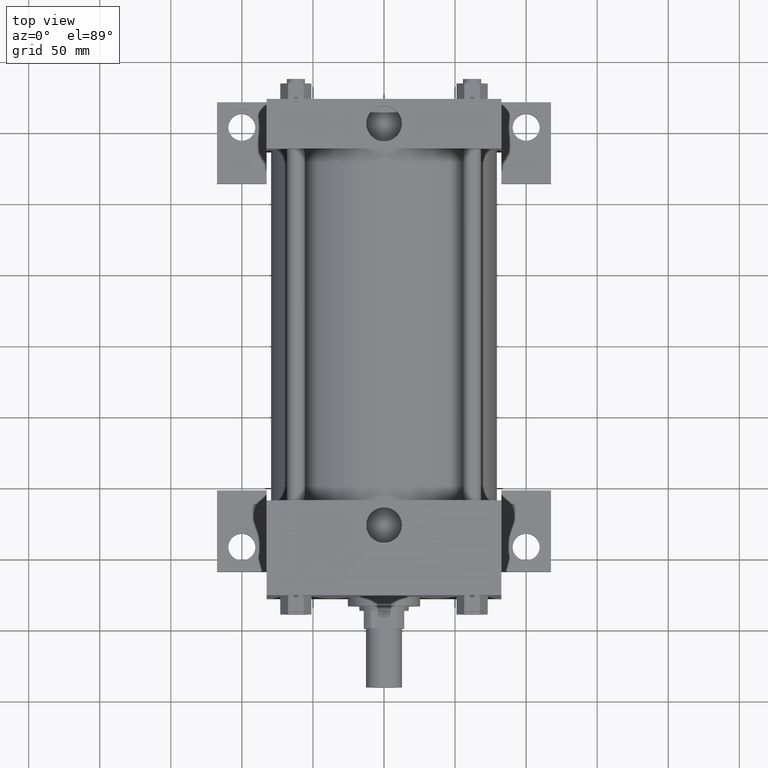
[diagram: clean part render]
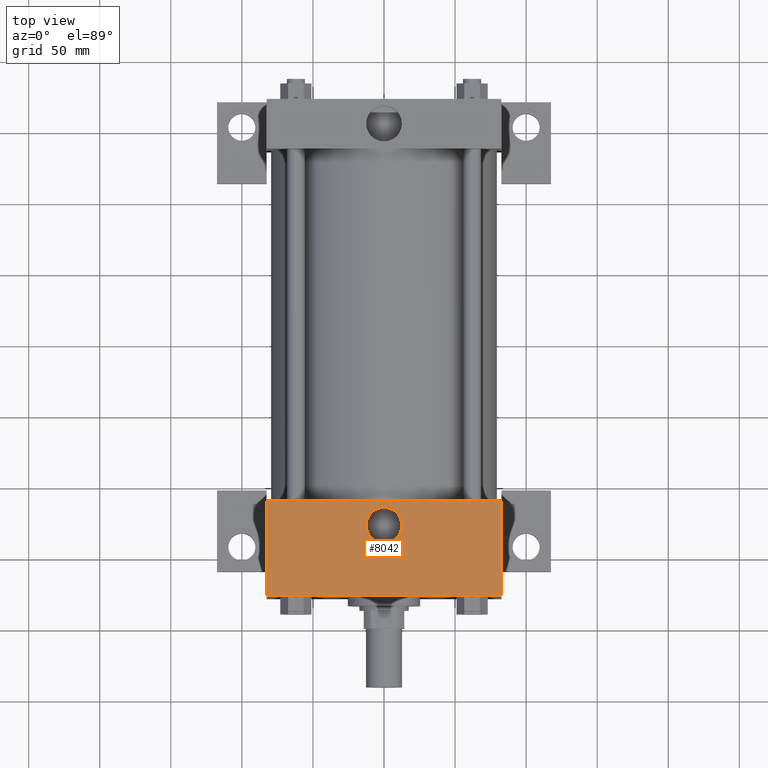
[diagram: same view with one face highlighted and labeled with its STEP entity id]
A machine part, top view. The second image highlights one B-rep face of the part: STEP entity #8042.
In plain terms, the highlighted planar face has unit normal (0, 0, 1).
Its self-contained STEP definition (entity closure, byte-faithful):
#1382=EDGE_CURVE('',#1388,#1388,#1383,.T.);
#1383=CIRCLE('',#1384,1.255903000E+001);
#1384=AXIS2_PLACEMENT_3D('',#1385,#1386,#1387);
#1385=CARTESIAN_POINT('',(0.000000000E+000,7.143750000E+001,8.255000000E+001));
#1386=DIRECTION('',(0.0E+000,0.0E+000,-1.0E+000));
#1387=DIRECTION('',(-1.0E+000,0.0E+000,0.0E+000));
#1388=VERTEX_POINT('',#1389);
#1389=CARTESIAN_POINT('',(-1.255903000E+001,7.143750000E+001,8.255000000E+001));
#1846=VERTEX_POINT('',#1847);
#1847=CARTESIAN_POINT('',(-8.255000000E+001,2.222500000E+001,8.255000000E+001));
#1848=EDGE_CURVE('',#1853,#1846,#1849,.T.);
#1849=LINE('',#1850,#1851);
#1850=CARTESIAN_POINT('',(-8.255000000E+001,8.890000000E+001,8.255000000E+001));
#1851=VECTOR('',#1852,1.0E+000);
#1852=DIRECTION('',(0.0E+000,-1.0E+000,0.0E+000));
#1853=VERTEX_POINT('',#1854);
#1854=CARTESIAN_POINT('',(-8.255000000E+001,8.890000000E+001,8.255000000E+001));
#1861=FACE_OUTER_BOUND('',#1863,.T.);
#1862=FACE_BOUND('',#1864,.T.);
#1863=EDGE_LOOP('',(#1865));
#1864=EDGE_LOOP('',(#1866,#1867,#1868,#1869));
#1865=ORIENTED_EDGE('',*,*,#1382,.T.);
#1866=ORIENTED_EDGE('',*,*,#1870,.F.);
#1867=ORIENTED_EDGE('',*,*,#1877,.F.);
#1868=ORIENTED_EDGE('',*,*,#1884,.T.);
#1869=ORIENTED_EDGE('',*,*,#1848,.T.);
#1870=EDGE_CURVE('',#1875,#1846,#1871,.T.);
#1871=LINE('',#1872,#1873);
#1872=CARTESIAN_POINT('',(8.255000000E+001,2.222500000E+001,8.255000000E+001));
#1873=VECTOR('',#1874,1.0E+000);
#1874=DIRECTION('',(-1.0E+000,0.0E+000,0.0E+000));
#1875=VERTEX_POINT('',#1876);
#1876=CARTESIAN_POINT('',(8.255000000E+001,2.222500000E+001,8.255000000E+001));
#1877=EDGE_CURVE('',#1882,#1875,#1878,.T.);
#1878=LINE('',#1879,#1880);
#1879=CARTESIAN_POINT('',(8.255000000E+001,8.890000000E+001,8.255000000E+001));
#1880=VECTOR('',#1881,1.0E+000);
#1881=DIRECTION('',(0.0E+000,-1.0E+000,0.0E+000));
#1882=VERTEX_POINT('',#1883);
#1883=CARTESIAN_POINT('',(8.255000000E+001,8.890000000E+001,8.255000000E+001));
#1884=EDGE_CURVE('',#1882,#1853,#1885,.T.);
#1885=LINE('',#1886,#1887);
#1886=CARTESIAN_POINT('',(8.255000000E+001,8.890000000E+001,8.255000000E+001));
#1887=VECTOR('',#1888,1.0E+000);
#1888=DIRECTION('',(-1.0E+000,0.0E+000,0.0E+000));
#1889=PLANE('',#1890);
#1890=AXIS2_PLACEMENT_3D('',#1891,#1892,#1893);
#1891=CARTESIAN_POINT('',(8.255000000E+001,8.890000000E+001,8.255000000E+001));
#1892=DIRECTION('',(0.0E+000,0.0E+000,1.0E+000));
#1893=DIRECTION('',(1.0E+000,0.0E+000,0.0E+000));
#8042=ADVANCED_FACE('',(#1861,#1862),#1889,.T.);